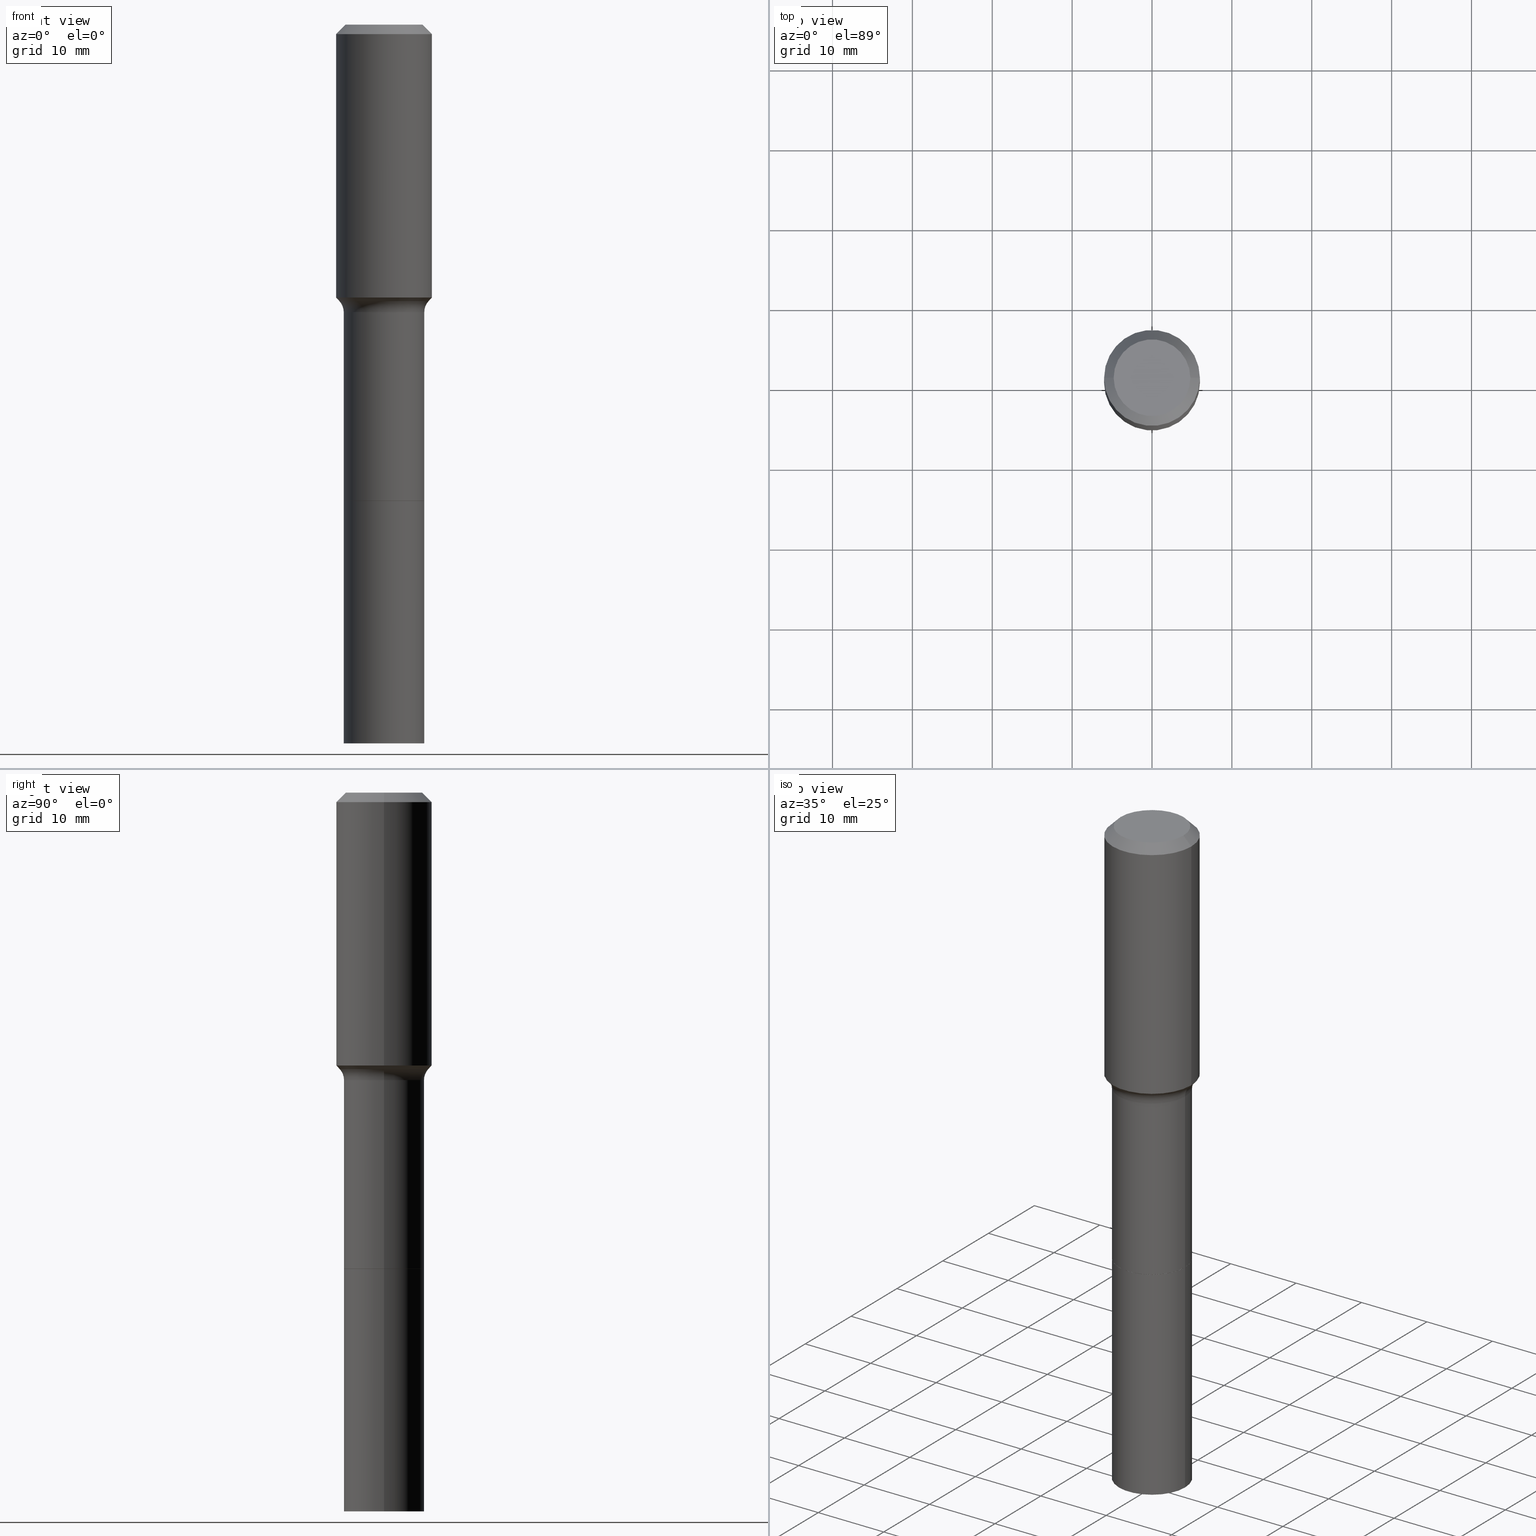
[diagram: canonical four-view strip — front | top / right | iso, engineering-drawing reading convention]
A machine part, canonical four-view strip (front | top / right | iso — engineering-drawing reading convention). The complete STEP part file that produces these views, byte-faithful:
ISO-10303-21;
HEADER;
FILE_DESCRIPTION (( 'STEP AP203' ),
    '1' );
FILE_NAME ('58837.STEP',
    '2025-04-01T15:25:31',
    ( '' ),
    ( '' ),
    'SwSTEP 2.0',
    'SolidWorks 2024',
    '' );
FILE_SCHEMA (( 'CONFIG_CONTROL_DESIGN' ));
ENDSEC;

DATA;
#1 = COORDINATED_UNIVERSAL_TIME_OFFSET ( 5, 0, .BEHIND. ) ;
#2 = AXIS2_PLACEMENT_3D ( 'NONE', #517, #344, #305 ) ;
#3 = CARTESIAN_POINT ( 'NONE',  ( 3.290033129125664758E-29, -4.697295359263862685E-15, -1.345358861582873766 ) ) ;
#4 = FACE_OUTER_BOUND ( 'NONE', #229, .T. ) ;
#5 = PERSON_AND_ORGANIZATION ( #325, #341 ) ;
#6 = CC_DESIGN_DATE_AND_TIME_ASSIGNMENT ( #234, #398, ( #388 ) ) ;
#7 = CLOSED_SHELL ( 'NONE', ( #356, #37, #238, #254, #471, #101, #432, #140, #116, #257, #270, #261, #316, #165 ) ) ;
#8 = DATE_AND_TIME ( #248, #410 ) ;
#9 = AXIS2_PLACEMENT_3D ( 'NONE', #330, #334, #500 ) ;
#10 = CARTESIAN_POINT ( 'NONE',  ( 0.000000000000000000, 0.000000000000000000, 0.000000000000000000 ) ) ;
#11 = EDGE_CURVE ( 'NONE', #28, #467, #494, .T. ) ;
#12 = PERSON_AND_ORGANIZATION ( #325, #341 ) ;
#13 = DIRECTION ( 'NONE',  ( 1.000000000000000000, -6.982962677686269077E-15, 0.000000000000000000 ) ) ;
#14 = DIRECTION ( 'NONE',  ( -2.445468806185136597E-29, 3.491481338843145583E-15, 1.000000000000000000 ) ) ;
#15 = LINE ( 'NONE', #371, #478 ) ;
#16 = LINE ( 'NONE', #178, #122 ) ;
#17 = DIRECTION ( 'NONE',  ( -2.445468806185136597E-29, 3.491481338843145583E-15, 1.000000000000000000 ) ) ;
#18 = AXIS2_PLACEMENT_3D ( 'NONE', #407, #51, #127 ) ;
#19 = DIRECTION ( 'NONE',  ( -2.445468806185136597E-29, 3.491481338843145583E-15, 1.000000000000000000 ) ) ;
#20 = EDGE_CURVE ( 'NONE', #28, #31, #74, .T. ) ;
#21 = LINE ( 'NONE', #338, #177 ) ;
#22 = CIRCLE ( 'NONE', #2, 0.1985000000000000098 ) ;
#23 = CYLINDRICAL_SURFACE ( 'NONE', #9, 0.1985000000000000098 ) ;
#24 = ORIENTED_EDGE ( 'NONE', *, *, #273, .F. ) ;
#25 = CARTESIAN_POINT ( 'NONE',  ( -0.1980000000000000093, -6.785188048522673829E-15, -2.346299999999999830 ) ) ;
#26 = VERTEX_POINT ( 'NONE', #38 ) ;
#27 = EDGE_LOOP ( 'NONE', ( #144, #306 ) ) ;
#28 = VERTEX_POINT ( 'NONE', #153 ) ;
#29 = CIRCLE ( 'NONE', #39, 0.07999999999999983513 ) ;
#30 = CARTESIAN_POINT ( 'NONE',  ( -0.2361999999999999933, 1.484438206022545019E-15, -0.04724000000000028870 ) ) ;
#31 = VERTEX_POINT ( 'NONE', #32 ) ;
#32 = CARTESIAN_POINT ( 'NONE',  ( -0.2361999999999999933, -7.528145269900497156E-16, -0.04724000000000028870 ) ) ;
#33 = CIRCLE ( 'NONE', #104, 0.07999999999999983513 ) ;
#34 = PRODUCT_DEFINITION_SHAPE ( 'NONE', 'NONE',  #451 ) ;
#35 = ORIENTED_EDGE ( 'NONE', *, *, #187, .F. ) ;
#36 = VERTEX_POINT ( 'NONE', #470 ) ;
#37 = ADVANCED_FACE ( 'NONE', ( #434 ), #123, .T. ) ;
#38 = CARTESIAN_POINT ( 'NONE',  ( -0.1985000000000000098, -8.871286916141496321E-15, -2.346299999999999830 ) ) ;
#39 = AXIS2_PLACEMENT_3D ( 'NONE', #72, #173, #427 ) ;
#40 = APPROVAL_PERSON_ORGANIZATION ( #285, #441, #236 ) ;
#41 = DIRECTION ( 'NONE',  ( -0.7071067811864509833, 7.493145998870005484E-15, 0.7071067811866440511 ) ) ;
#42 = CARTESIAN_POINT ( 'NONE',  ( 0.1980000000000000093, -9.574689275509554760E-15, -2.346299999999999830 ) ) ;
#43 = CC_DESIGN_PERSON_AND_ORGANIZATION_ASSIGNMENT ( #378, #339, ( #79 ) ) ;
#44 = CARTESIAN_POINT ( 'NONE',  ( 8.665029620955794069E-29, -1.237136582792291707E-14, -3.543299999999999894 ) ) ;
#45 = DATE_AND_TIME ( #131, #436 ) ;
#46 = CONICAL_SURFACE ( 'NONE', #345, 0.1980000000000000093, 0.7853981633973118326 ) ;
#47 = APPROVAL_DATE_TIME ( #8, #264 ) ;
#48 = DIRECTION ( 'NONE',  ( -0.6819983600624988096, 7.399397606724288154E-15, 0.7313537016191701268 ) ) ;
#49 = APPROVAL_DATE_TIME ( #45, #441 ) ;
#50 = EDGE_CURVE ( 'NONE', #429, #106, #438, .T. ) ;
#51 = DIRECTION ( 'NONE',  ( -2.445468806185136597E-29, 3.491481338843145583E-15, 1.000000000000000000 ) ) ;
#52 = AXIS2_PLACEMENT_3D ( 'NONE', #505, #139, #423 ) ;
#53 = CARTESIAN_POINT ( 'NONE',  ( 5.737803459952185617E-29, -8.192062665327673446E-15, -2.346299999999999830 ) ) ;
#54 = CALENDAR_DATE ( 2025, 1, 4 ) ;
#55 =( LENGTH_UNIT ( ) NAMED_UNIT ( * ) SI_UNIT ( $, .METRE. ) );
#56 = CC_DESIGN_PERSON_AND_ORGANIZATION_ASSIGNMENT ( #363, #281, ( #388 ) ) ;
#57 = CARTESIAN_POINT ( 'NONE',  ( 0.2784999999999999143, -6.893231607278014049E-15, -1.417299999999999560 ) ) ;
#58 = CARTESIAN_POINT ( 'NONE',  ( 1.155239464041865682E-30, -1.649375784469512105E-16, -0.04724000000000028870 ) ) ;
#59 = DIRECTION ( 'NONE',  ( 1.000000000000000000, -6.982962677686265133E-15, 0.000000000000000000 ) ) ;
#60 = VECTOR ( 'NONE', #294, 39.37007874015748143 ) ;
#61 = DESIGN_CONTEXT ( 'detailed design', #357, 'design' ) ;
#62 = PLANE ( 'NONE',  #366 ) ;
#63 = CLOSED_SHELL ( 'NONE', ( #406, #324, #145, #414 ) ) ;
#64 = DIRECTION ( 'NONE',  ( -2.445468806185136877E-29, 3.491481338843145188E-15, 1.000000000000000000 ) ) ;
#65 = FACE_OUTER_BOUND ( 'NONE', #425, .T. ) ;
#66 = EDGE_CURVE ( 'NONE', #80, #474, #22, .T. ) ;
#67 = CIRCLE ( 'NONE', #96, 0.1985000000000000098 ) ;
#68 = DIRECTION ( 'NONE',  ( -2.445468806185136597E-29, 3.491481338843145583E-15, 1.000000000000000000 ) ) ;
#69 = APPLICATION_PROTOCOL_DEFINITION ( 'international standard', 'config_control_design', 1994, #472 ) ;
#70 = VERTEX_POINT ( 'NONE', #395 ) ;
#71 = VECTOR ( 'NONE', #228, 39.37007874015748143 ) ;
#72 = CARTESIAN_POINT ( 'NONE',  ( -0.2784999999999999143, -2.969614982450510850E-15, -1.417299999999999560 ) ) ;
#73 = ORIENTED_EDGE ( 'NONE', *, *, #176, .T. ) ;
#74 = LINE ( 'NONE', #30, #71 ) ;
#75 = ORIENTED_EDGE ( 'NONE', *, *, #124, .T. ) ;
#76 = ORIENTED_EDGE ( 'NONE', *, *, #223, .F. ) ;
#77 = ORIENTED_EDGE ( 'NONE', *, *, #86, .T. ) ;
#78 = AXIS2_PLACEMENT_3D ( 'NONE', #355, #386, #315 ) ;
#79 = PRODUCT ( '58837', '58837', '', ( #217 ) ) ;
#80 = VERTEX_POINT ( 'NONE', #157 ) ;
#81 = ORIENTED_EDGE ( 'NONE', *, *, #176, .F. ) ;
#82 = DIRECTION ( 'NONE',  ( -2.445468806185136597E-29, 3.491481338843145583E-15, 1.000000000000000000 ) ) ;
#83 = EDGE_LOOP ( 'NONE', ( #263, #477, #152, #314 ) ) ;
#84 = CONICAL_SURFACE ( 'NONE', #181, 0.2361999999999999933, 0.7853981633974452814 ) ;
#85 = VERTEX_POINT ( 'NONE', #225 ) ;
#86 = EDGE_CURVE ( 'NONE', #111, #31, #354, .T. ) ;
#87 = DIRECTION ( 'NONE',  ( -2.445468806185136597E-29, 3.491481338843145583E-15, 1.000000000000000000 ) ) ;
#88 = AXIS2_PLACEMENT_3D ( 'NONE', #44, #91, #130 ) ;
#89 = DIRECTION ( 'NONE',  ( -2.445468806185136597E-29, 3.491481338843145583E-15, 1.000000000000000000 ) ) ;
#90 = FACE_OUTER_BOUND ( 'NONE', #303, .T. ) ;
#91 = DIRECTION ( 'NONE',  ( 2.438088387897960049E-29, -3.491481338843145188E-15, -1.000000000000000000 ) ) ;
#92 = TOROIDAL_SURFACE ( 'NONE', #360, 0.2784999999999999143, 0.07999999999999986289 ) ;
#93 = FACE_OUTER_BOUND ( 'NONE', #310, .T. ) ;
#94 = DIRECTION ( 'NONE',  ( 1.000000000000000000, -6.982962677686265922E-15, 4.883557194083112901E-29 ) ) ;
#95 = PLANE ( 'NONE',  #272 ) ;
#96 = AXIS2_PLACEMENT_3D ( 'NONE', #413, #135, #102 ) ;
#97 = CARTESIAN_POINT ( 'NONE',  ( 8.665029620955794069E-29, -1.237136582792291707E-14, -3.543299999999999894 ) ) ;
#98 = DIRECTION ( 'NONE',  ( 1.000000000000000000, -6.982962677686265922E-15, 4.876176775795935793E-29 ) ) ;
#99 = AXIS2_PLACEMENT_3D ( 'NONE', #417, #103, #290 ) ;
#100 = UNCERTAINTY_MEASURE_WITH_UNIT (LENGTH_MEASURE( 1.000000000000000082E-05 ), #214, 'distance_accuracy_value', 'NONE');
#101 = ADVANCED_FACE ( 'NONE', ( #198 ), #298, .T. ) ;
#102 = DIRECTION ( 'NONE',  ( 1.000000000000000000, -6.982962677686271444E-15, 0.000000000000000000 ) ) ;
#103 = DIRECTION ( 'NONE',  ( -2.445468806185136597E-29, 3.491481338843145583E-15, 1.000000000000000000 ) ) ;
#104 = AXIS2_PLACEMENT_3D ( 'NONE', #57, #370, #485 ) ;
#105 = CARTESIAN_POINT ( 'NONE',  ( 5.737803459952185617E-29, -8.192062665327673446E-15, -2.346299999999999830 ) ) ;
#106 = VERTEX_POINT ( 'NONE', #253 ) ;
#107 = EDGE_CURVE ( 'NONE', #514, #111, #250, .T. ) ;
#108 = DIRECTION ( 'NONE',  ( 1.000000000000000000, -6.982962677686263555E-15, 0.000000000000000000 ) ) ;
#109 = ORIENTED_EDGE ( 'NONE', *, *, #124, .F. ) ;
#110 = CIRCLE ( 'NONE', #396, 0.1980000000000000093 ) ;
#111 = VERTEX_POINT ( 'NONE', #466 ) ;
#112 = ORIENTED_EDGE ( 'NONE', *, *, #340, .T. ) ;
#113 = CARTESIAN_POINT ( 'NONE',  ( 0.1980000000000000093, -9.574689275509554760E-15, -2.346299999999999830 ) ) ;
#114 = CIRCLE ( 'NONE', #443, 0.2362000000000001598 ) ;
#115 = DIRECTION ( 'NONE',  ( -2.445468806185136597E-29, 3.491481338843145583E-15, 1.000000000000000000 ) ) ;
#116 = ADVANCED_FACE ( 'NONE', ( #65 ), #195, .T. ) ;
#117 = ORIENTED_EDGE ( 'NONE', *, *, #353, .T. ) ;
#118 = VECTOR ( 'NONE', #401, 39.37007874015748143 ) ;
#119 = ORIENTED_EDGE ( 'NONE', *, *, #216, .T. ) ;
#120 = ORIENTED_EDGE ( 'NONE', *, *, #422, .F. ) ;
#121 = VERTEX_POINT ( 'NONE', #182 ) ;
#122 = VECTOR ( 'NONE', #64, 39.37007874015748143 ) ;
#123 = CONICAL_SURFACE ( 'NONE', #504, 0.2361999999999999933, 0.7853981633974452814 ) ;
#124 = EDGE_CURVE ( 'NONE', #474, #26, #462, .T. ) ;
#125 = CARTESIAN_POINT ( 'NONE',  ( 3.332538481774012867E-29, -4.757981737760002382E-15, -1.362740131195000037 ) ) ;
#126 = AXIS2_PLACEMENT_3D ( 'NONE', #453, #488, #326 ) ;
#127 = DIRECTION ( 'NONE',  ( 1.000000000000000000, -6.982962677686271444E-15, 0.000000000000000000 ) ) ;
#128 = DIRECTION ( 'NONE',  ( -2.445468806185136597E-29, 3.491481338843145583E-15, 1.000000000000000000 ) ) ;
#129 = PERSON_AND_ORGANIZATION_ROLE ( 'design_supplier' ) ;
#130 = DIRECTION ( 'NONE',  ( -1.000000000000000000, 6.982962677686265922E-15, -4.876176775795935793E-29 ) ) ;
#131 = CALENDAR_DATE ( 2025, 1, 4 ) ;
#132 = PERSON_AND_ORGANIZATION ( #325, #341 ) ;
#133 = FACE_OUTER_BOUND ( 'NONE', #475, .T. ) ;
#134 = DIRECTION ( 'NONE',  ( 0.7071067811865453523, -7.319954787623248157E-15, -0.7071067811865496822 ) ) ;
#135 = DIRECTION ( 'NONE',  ( -2.445468806185136597E-29, 3.491481338843145583E-15, 1.000000000000000000 ) ) ;
#136 = FACE_OUTER_BOUND ( 'NONE', #222, .T. ) ;
#137 = EDGE_CURVE ( 'NONE', #394, #431, #29, .T. ) ;
#138 = LINE ( 'NONE', #292, #457 ) ;
#139 = DIRECTION ( 'NONE',  ( 0.000000000000000000, 0.000000000000000000, 1.000000000000000000 ) ) ;
#140 = ADVANCED_FACE ( 'NONE', ( #141 ), #92, .F. ) ;
#141 = FACE_OUTER_BOUND ( 'NONE', #83, .T. ) ;
#142 = CIRCLE ( 'NONE', #419, 0.2199917038704662653 ) ;
#143 = CARTESIAN_POINT ( 'NONE',  ( 3.465962939006193198E-29, -4.948476501542388865E-15, -1.417299999999999560 ) ) ;
#144 = ORIENTED_EDGE ( 'NONE', *, *, #66, .F. ) ;
#145 = ADVANCED_FACE ( 'NONE', ( #459 ), #220, .T. ) ;
#146 = DIRECTION ( 'NONE',  ( 1.000000000000000000, -6.982962677686266711E-15, 4.876185090822587894E-29 ) ) ;
#147 = EDGE_LOOP ( 'NONE', ( #350, #75, #312, #346 ) ) ;
#148 = ORIENTED_EDGE ( 'NONE', *, *, #187, .T. ) ;
#149 = ORIENTED_EDGE ( 'NONE', *, *, #11, .T. ) ;
#150 = CIRCLE ( 'NONE', #18, 0.1985000000000000098 ) ;
#151 = EDGE_CURVE ( 'NONE', #464, #431, #435, .T. ) ;
#152 = ORIENTED_EDGE ( 'NONE', *, *, #422, .T. ) ;
#153 = CARTESIAN_POINT ( 'NONE',  ( -0.1889600000000000168, 1.401969416799070942E-15, 3.855188123706346622E-18 ) ) ;
#154 = ORIENTED_EDGE ( 'NONE', *, *, #491, .T. ) ;
#155 = AXIS2_PLACEMENT_3D ( 'NONE', #167, #329, #331 ) ;
#156 = PRODUCT_DEFINITION_FORMATION_WITH_SPECIFIED_SOURCE ( 'ANY', '', #79, .NOT_KNOWN. ) ;
#157 = CARTESIAN_POINT ( 'NONE',  ( 0.1985000000000000098, -1.375748391944363982E-14, -3.543299999999999894 ) ) ;
#158 = CC_DESIGN_APPROVAL ( #264, ( #451 ) ) ;
#159 = FACE_OUTER_BOUND ( 'NONE', #147, .T. ) ;
#160 = CONICAL_SURFACE ( 'NONE', #226, 0.2199917038704662653, 0.7504915783575621946 ) ;
#161 = PERSON_AND_ORGANIZATION ( #325, #341 ) ;
#162 = LOCAL_TIME ( 11, 25, 31.00000000000000000, #283 ) ;
#163 = CARTESIAN_POINT ( 'NONE',  ( 3.477250939119132197E-29, -1.142930253781982442E-14, -2.346299999999999830 ) ) ;
#164 = COORDINATED_UNIVERSAL_TIME_OFFSET ( 5, 0, .BEHIND. ) ;
#165 = ADVANCED_FACE ( 'NONE', ( #424 ), #46, .T. ) ;
#166 = AXIS2_PLACEMENT_3D ( 'NONE', #210, #14, #94 ) ;
#167 = CARTESIAN_POINT ( 'NONE',  ( -4.713871149261273121E-47, 6.730158695841826722E-33, 1.927594061857931128E-18 ) ) ;
#168 = EDGE_CURVE ( 'NONE', #85, #106, #387, .T. ) ;
#169 = DIRECTION ( 'NONE',  ( -2.445468806185136597E-29, 3.491481338843145583E-15, 1.000000000000000000 ) ) ;
#170 = PLANE ( 'NONE',  #155 ) ;
#171 = APPLICATION_PROTOCOL_DEFINITION ( 'international standard', 'config_control_design', 1994, #357 ) ;
#172 = CARTESIAN_POINT ( 'NONE',  ( 5.737803459952185617E-29, -8.192062665327673446E-15, -2.346299999999999830 ) ) ;
#173 = DIRECTION ( 'NONE',  ( 7.105427357601001859E-15, 1.000000000000000000, -3.491481338843145583E-15 ) ) ;
#174 = CIRCLE ( 'NONE', #237, 0.1984999999999999543 ) ;
#175 = CARTESIAN_POINT ( 'NONE',  ( 5.736580725549092815E-29, -8.190316924658251154E-15, -2.345799999999999663 ) ) ;
#176 = EDGE_CURVE ( 'NONE', #70, #514, #21, .T. ) ;
#177 = VECTOR ( 'NONE', #296, 39.37007874015748143 ) ;
#178 = CARTESIAN_POINT ( 'NONE',  ( -0.1985000000000000098, 1.410427330483798938E-15, -9.764086154155988574E-30 ) ) ;
#179 = CC_DESIGN_PERSON_AND_ORGANIZATION_ASSIGNMENT ( #12, #495, ( #451 ) ) ;
#180 = ORIENTED_EDGE ( 'NONE', *, *, #333, .F. ) ;
#181 = AXIS2_PLACEMENT_3D ( 'NONE', #58, #444, #499 ) ;
#182 = CARTESIAN_POINT ( 'NONE',  ( -0.1980000000000000093, -6.782538821348561839E-15, -2.346299999999999830 ) ) ;
#183 = ORIENTED_EDGE ( 'NONE', *, *, #353, .F. ) ;
#184 = DIRECTION ( 'NONE',  ( -1.000000000000000000, 6.982962677686266711E-15, 0.000000000000000000 ) ) ;
#185 = CIRCLE ( 'NONE', #218, 0.2362000000000001598 ) ;
#186 = ORIENTED_EDGE ( 'NONE', *, *, #333, .T. ) ;
#187 = EDGE_CURVE ( 'NONE', #121, #85, #255, .T. ) ;
#188 = ORIENTED_EDGE ( 'NONE', *, *, #107, .F. ) ;
#189 = ORIENTED_EDGE ( 'NONE', *, *, #364, .T. ) ;
#190 = ORIENTED_EDGE ( 'NONE', *, *, #367, .T. ) ;
#191 = AXIS2_PLACEMENT_3D ( 'NONE', #97, #209, #274 ) ;
#192 = EDGE_LOOP ( 'NONE', ( #109, #189, #510, #221 ) ) ;
#193 = ORIENTED_EDGE ( 'NONE', *, *, #243, .F. ) ;
#194 = EDGE_CURVE ( 'NONE', #31, #111, #426, .T. ) ;
#195 = CONICAL_SURFACE ( 'NONE', #99, 0.2199917038704662653, 0.7504915783575621946 ) ;
#196 = EDGE_LOOP ( 'NONE', ( #391, #268, #219, #269 ) ) ;
#197 = DIRECTION ( 'NONE',  ( 1.000000000000000000, -6.982962677686271444E-15, 0.000000000000000000 ) ) ;
#198 = FACE_OUTER_BOUND ( 'NONE', #196, .T. ) ;
#199 = CARTESIAN_POINT ( 'NONE',  ( 5.737803459952185617E-29, -8.192062665327671869E-15, -2.346299999999999830 ) ) ;
#200 = DIRECTION ( 'NONE',  ( 1.000000000000000000, -6.982962677686264344E-15, 0.000000000000000000 ) ) ;
#201 = PERSON_AND_ORGANIZATION_ROLE ( 'creator' ) ;
#202 = CC_DESIGN_APPROVAL ( #465, ( #388 ) ) ;
#203 = CARTESIAN_POINT ( 'NONE',  ( 0.2361999999999999933, -1.785387205520586782E-15, -0.04724000000000028870 ) ) ;
#204 = SECURITY_CLASSIFICATION_LEVEL ( 'unclassified' ) ;
#205 = EDGE_CURVE ( 'NONE', #106, #464, #235, .T. ) ;
#206 = CIRCLE ( 'NONE', #191, 0.1985000000000000098 ) ;
#207 = DIRECTION ( 'NONE',  ( -2.445468806185136597E-29, 3.491481338843145583E-15, 1.000000000000000000 ) ) ;
#208 = DIRECTION ( 'NONE',  ( -2.445468806185136597E-29, 3.491481338843145583E-15, 1.000000000000000000 ) ) ;
#209 = DIRECTION ( 'NONE',  ( -2.445468806185136597E-29, 3.491481338843145583E-15, 1.000000000000000000 ) ) ;
#210 = CARTESIAN_POINT ( 'NONE',  ( 3.465962939006193198E-29, -4.948476501542388865E-15, -1.417299999999999560 ) ) ;
#211 = DIRECTION ( 'NONE',  ( 1.000000000000000000, -6.982962677686268288E-15, 0.000000000000000000 ) ) ;
#212 = CARTESIAN_POINT ( 'NONE',  ( 3.465962939006193759E-29, -4.948476501542390442E-15, -1.417300000000000004 ) ) ;
#213 = CIRCLE ( 'NONE', #513, 0.1985000000000000375 ) ;
#214 =( CONVERSION_BASED_UNIT ( 'INCH', #252 ) LENGTH_UNIT ( ) NAMED_UNIT ( #377 ) );
#215 = DIRECTION ( 'NONE',  ( 1.000000000000000000, -6.982962677686265922E-15, 4.883557194083112901E-29 ) ) ;
#216 = EDGE_CURVE ( 'NONE', #262, #514, #185, .T. ) ;
#217 = MECHANICAL_CONTEXT ( 'NONE', #472, 'mechanical' ) ;
#218 = AXIS2_PLACEMENT_3D ( 'NONE', #496, #239, #211 ) ;
#219 = ORIENTED_EDGE ( 'NONE', *, *, #151, .F. ) ;
#220 = CYLINDRICAL_SURFACE ( 'NONE', #449, 0.1985000000000000098 ) ;
#221 = ORIENTED_EDGE ( 'NONE', *, *, #392, .F. ) ;
#222 = EDGE_LOOP ( 'NONE', ( #149, #479 ) ) ;
#223 = EDGE_CURVE ( 'NONE', #467, #111, #251, .T. ) ;
#224 = EDGE_LOOP ( 'NONE', ( #227, #154, #265, #188 ) ) ;
#225 = CARTESIAN_POINT ( 'NONE',  ( -0.1985000000000000375, -5.158969382616521071E-15, -2.345799999999999663 ) ) ;
#226 = AXIS2_PLACEMENT_3D ( 'NONE', #125, #492, #200 ) ;
#227 = ORIENTED_EDGE ( 'NONE', *, *, #379, .T. ) ;
#228 = DIRECTION ( 'NONE',  ( -0.7071067811865453523, 2.468850131082234184E-15, -0.7071067811865496822 ) ) ;
#229 = EDGE_LOOP ( 'NONE', ( #190, #117, #266, #81 ) ) ;
#230 = EDGE_CURVE ( 'NONE', #80, #36, #15, .T. ) ;
#231 = ORIENTED_EDGE ( 'NONE', *, *, #107, .T. ) ;
#232 = DIRECTION ( 'NONE',  ( 2.445468806185136597E-29, -3.491481338843145583E-15, -1.000000000000000000 ) ) ;
#233 = CC_DESIGN_APPROVAL ( #441, ( #156 ) ) ;
#234 = DATE_AND_TIME ( #54, #293 ) ;
#235 = LINE ( 'NONE', #393, #118 ) ;
#236 = APPROVAL_ROLE ( '' ) ;
#237 = AXIS2_PLACEMENT_3D ( 'NONE', #452, #128, #278 ) ;
#238 = ADVANCED_FACE ( 'NONE', ( #408 ), #372, .T. ) ;
#239 = DIRECTION ( 'NONE',  ( -2.445468806185136597E-29, 3.491481338843145583E-15, 1.000000000000000000 ) ) ;
#240 = AXIS2_PLACEMENT_3D ( 'NONE', #175, #68, #258 ) ;
#241 = PLANE ( 'NONE',  #88 ) ;
#242 = FACE_OUTER_BOUND ( 'NONE', #27, .T. ) ;
#243 = EDGE_CURVE ( 'NONE', #429, #121, #110, .T. ) ;
#244 =( NAMED_UNIT ( * ) PLANE_ANGLE_UNIT ( ) SI_UNIT ( $, .RADIAN. ) );
#245 = VECTOR ( 'NONE', #48, 39.37007874015748143 ) ;
#246 = CARTESIAN_POINT ( 'NONE',  ( 5.737803459952185617E-29, -8.192062665327671869E-15, -2.346299999999999830 ) ) ;
#247 = DIRECTION ( 'NONE',  ( -2.445468806185136597E-29, 3.491481338843145583E-15, 1.000000000000000000 ) ) ;
#248 = CALENDAR_DATE ( 2025, 1, 4 ) ;
#249 = CC_DESIGN_PERSON_AND_ORGANIZATION_ASSIGNMENT ( #5, #129, ( #156 ) ) ;
#250 = LINE ( 'NONE', #342, #60 ) ;
#251 = LINE ( 'NONE', #203, #313 ) ;
#252 = LENGTH_MEASURE_WITH_UNIT ( LENGTH_MEASURE( 0.02539999999999999897 ), #55 );
#253 = CARTESIAN_POINT ( 'NONE',  ( 0.1985000000000000375, -9.576435016178973897E-15, -2.345799999999999663 ) ) ;
#254 = ADVANCED_FACE ( 'NONE', ( #4 ), #160, .T. ) ;
#255 = LINE ( 'NONE', #25, #335 ) ;
#256 = ORIENTED_EDGE ( 'NONE', *, *, #392, .T. ) ;
#257 = ADVANCED_FACE ( 'NONE', ( #412 ), #368, .T. ) ;
#258 = DIRECTION ( 'NONE',  ( 1.000000000000000000, -6.982962677686265133E-15, 0.000000000000000000 ) ) ;
#259 = ORIENTED_EDGE ( 'NONE', *, *, #50, .F. ) ;
#260 = ORIENTED_EDGE ( 'NONE', *, *, #194, .T. ) ;
#261 = ADVANCED_FACE ( 'NONE', ( #136 ), #170, .F. ) ;
#262 = VERTEX_POINT ( 'NONE', #455 ) ;
#263 = ORIENTED_EDGE ( 'NONE', *, *, #137, .F. ) ;
#264 = APPROVAL ( #282, 'UNSPECIFIED' ) ;
#265 = ORIENTED_EDGE ( 'NONE', *, *, #86, .F. ) ;
#266 = ORIENTED_EDGE ( 'NONE', *, *, #379, .F. ) ;
#267 = AXIS2_PLACEMENT_3D ( 'NONE', #442, #87, #311 ) ;
#268 = ORIENTED_EDGE ( 'NONE', *, *, #480, .T. ) ;
#269 = ORIENTED_EDGE ( 'NONE', *, *, #205, .F. ) ;
#270 = ADVANCED_FACE ( 'NONE', ( #327 ), #84, .T. ) ;
#271 = ORIENTED_EDGE ( 'NONE', *, *, #137, .T. ) ;
#272 = AXIS2_PLACEMENT_3D ( 'NONE', #246, #402, #411 ) ;
#273 = EDGE_CURVE ( 'NONE', #467, #28, #400, .T. ) ;
#274 = DIRECTION ( 'NONE',  ( 1.000000000000000000, -6.982962677686261189E-15, 0.000000000000000000 ) ) ;
#275 = DIRECTION ( 'NONE',  ( 1.000000000000000000, -6.982962677686266711E-15, 4.876176775795935793E-29 ) ) ;
#276 = APPROVAL_ROLE ( '' ) ;
#277 = TOROIDAL_SURFACE ( 'NONE', #166, 0.2784999999999999143, 0.07999999999999986289 ) ;
#278 = DIRECTION ( 'NONE',  ( 1.000000000000000000, -6.982962677686263555E-15, 0.000000000000000000 ) ) ;
#279 = AXIS2_PLACEMENT_3D ( 'NONE', #10, #17, #275 ) ;
#280 = CARTESIAN_POINT ( 'NONE',  ( 3.332538481774012867E-29, -4.757981737760002382E-15, -1.362740131195000037 ) ) ;
#281 = PERSON_AND_ORGANIZATION_ROLE ( 'classification_officer' ) ;
#282 = APPROVAL_STATUS ( 'not_yet_approved' ) ;
#283 = COORDINATED_UNIVERSAL_TIME_OFFSET ( 5, 0, .BEHIND. ) ;
#284 = DIRECTION ( 'NONE',  ( 1.000000000000000000, -6.982962677686269077E-15, 0.000000000000000000 ) ) ;
#285 = PERSON_AND_ORGANIZATION ( #325, #341 ) ;
#286 = CC_DESIGN_PERSON_AND_ORGANIZATION_ASSIGNMENT ( #497, #201, ( #156 ) ) ;
#287 = CARTESIAN_POINT ( 'NONE',  ( 0.1889600000000000168, -1.540873453589747738E-15, 3.855188123725863225E-18 ) ) ;
#288 = CARTESIAN_POINT ( 'NONE',  ( 0.000000000000000000, 0.000000000000000000, 0.000000000000000000 ) ) ;
#289 = APPROVAL_DATE_TIME ( #420, #465 ) ;
#290 = DIRECTION ( 'NONE',  ( 1.000000000000000000, -6.982962677686264344E-15, 0.000000000000000000 ) ) ;
#291 = VECTOR ( 'NONE', #352, 39.37007874015748143 ) ;
#292 = CARTESIAN_POINT ( 'NONE',  ( -0.2362000000000000766, 1.678301941865357183E-15, -1.161852468318209177E-29 ) ) ;
#293 = LOCAL_TIME ( 11, 25, 31.00000000000000000, #1 ) ;
#294 = DIRECTION ( 'NONE',  ( -2.445468806185136877E-29, 3.491481338843145188E-15, 1.000000000000000000 ) ) ;
#295 = DIRECTION ( 'NONE',  ( -2.445468806185136597E-29, 3.491481338843145583E-15, 1.000000000000000000 ) ) ;
#296 = DIRECTION ( 'NONE',  ( 0.6819983600624988096, -2.208861293262478564E-15, 0.7313537016191701268 ) ) ;
#297 = ORIENTED_EDGE ( 'NONE', *, *, #243, .T. ) ;
#298 = CYLINDRICAL_SURFACE ( 'NONE', #317, 0.1985000000000000098 ) ;
#299 = DIRECTION ( 'NONE',  ( 1.000000000000000000, -6.982962677686265922E-15, 4.876176775795935793E-29 ) ) ;
#300 = ORIENTED_EDGE ( 'NONE', *, *, #194, .F. ) ;
#301 = EDGE_LOOP ( 'NONE', ( #24, #509, #77, #343 ) ) ;
#302 = CARTESIAN_POINT ( 'NONE',  ( -0.1985000000000000098, -6.781635334843872141E-15, -2.346299999999999830 ) ) ;
#303 = EDGE_LOOP ( 'NONE', ( #516, #430, #512, #351 ) ) ;
#304 = CC_DESIGN_DATE_AND_TIME_ASSIGNMENT ( #486, #446, ( #451 ) ) ;
#305 = DIRECTION ( 'NONE',  ( 1.000000000000000000, -6.982962677686261189E-15, 0.000000000000000000 ) ) ;
#306 = ORIENTED_EDGE ( 'NONE', *, *, #364, .F. ) ;
#307 = AXIS2_PLACEMENT_3D ( 'NONE', #199, #318, #197 ) ;
#308 = MANIFOLD_SOLID_BREP ( 'Body-Move/Copy2[1]', #63 ) ;
#309 = ORIENTED_EDGE ( 'NONE', *, *, #50, .T. ) ;
#310 = EDGE_LOOP ( 'NONE', ( #297, #148, #433, #259 ) ) ;
#311 = DIRECTION ( 'NONE',  ( 1.000000000000000000, -6.982962677686266711E-15, 0.000000000000000000 ) ) ;
#312 = ORIENTED_EDGE ( 'NONE', *, *, #506, .F. ) ;
#313 = VECTOR ( 'NONE', #134, 39.37007874015748143 ) ;
#314 = ORIENTED_EDGE ( 'NONE', *, *, #151, .T. ) ;
#315 = DIRECTION ( 'NONE',  ( 1.000000000000000000, -6.982962677686266711E-15, 0.000000000000000000 ) ) ;
#316 = ADVANCED_FACE ( 'NONE', ( #458 ), #62, .F. ) ;
#317 = AXIS2_PLACEMENT_3D ( 'NONE', #511, #82, #299 ) ;
#318 = DIRECTION ( 'NONE',  ( -2.445468806185136597E-29, 3.491481338843145583E-15, 1.000000000000000000 ) ) ;
#319 = DIRECTION ( 'NONE',  ( -2.445468806185136877E-29, 3.491481338843145188E-15, 1.000000000000000000 ) ) ;
#320 = APPROVAL_STATUS ( 'not_yet_approved' ) ;
#321 = DIRECTION ( 'NONE',  ( -2.445468806185136597E-29, 3.491481338843145583E-15, 1.000000000000000000 ) ) ;
#322 = CALENDAR_DATE ( 2025, 1, 4 ) ;
#323 = AXIS2_PLACEMENT_3D ( 'NONE', #358, #169, #399 ) ;
#324 = ADVANCED_FACE ( 'NONE', ( #242 ), #241, .T. ) ;
#325 = PERSON ( 'UNSPECIFIED', 'UNSPECIFIED', 'UNSPECIFIED', ('UNSPECIFIED'), ('UNSPECIFIED'), ('UNSPECIFIED') ) ;
#326 = DIRECTION ( 'NONE',  ( 1.000000000000000000, -6.982962677686264344E-15, 0.000000000000000000 ) ) ;
#327 = FACE_OUTER_BOUND ( 'NONE', #347, .T. ) ;
#328 = CYLINDRICAL_SURFACE ( 'NONE', #307, 0.1985000000000000098 ) ;
#329 = DIRECTION ( 'NONE',  ( 2.438088387897960049E-29, -3.491481338843145188E-15, -1.000000000000000000 ) ) ;
#330 = CARTESIAN_POINT ( 'NONE',  ( 0.000000000000000000, 0.000000000000000000, 0.000000000000000000 ) ) ;
#331 = DIRECTION ( 'NONE',  ( -1.000000000000000000, 6.982962677686265922E-15, -4.876176775795935793E-29 ) ) ;
#332 = DIRECTION ( 'NONE',  ( 1.000000000000000000, -6.982962677686271444E-15, 0.000000000000000000 ) ) ;
#333 = EDGE_CURVE ( 'NONE', #394, #70, #142, .T. ) ;
#334 = DIRECTION ( 'NONE',  ( -2.445468806185136597E-29, 3.491481338843145583E-15, 1.000000000000000000 ) ) ;
#335 = VECTOR ( 'NONE', #41, 39.37007874015748143 ) ;
#336 =( NAMED_UNIT ( * ) SI_UNIT ( $, .STERADIAN. ) SOLID_ANGLE_UNIT ( ) );
#337 = PRODUCT_RELATED_PRODUCT_CATEGORY ( 'detail', '', ( #79 ) ) ;
#338 = CARTESIAN_POINT ( 'NONE',  ( 0.2199917038704662653, -6.294175595288077070E-15, -1.362740131195000037 ) ) ;
#339 = PERSON_AND_ORGANIZATION_ROLE ( 'design_owner' ) ;
#340 = EDGE_CURVE ( 'NONE', #431, #464, #174, .T. ) ;
#341 = ORGANIZATION ( 'UNSPECIFIED', 'UNSPECIFIED', '' ) ;
#342 = CARTESIAN_POINT ( 'NONE',  ( 0.2362000000000000766, -1.649375784469496722E-15, 1.151752954443000368E-29 ) ) ;
#343 = ORIENTED_EDGE ( 'NONE', *, *, #20, .F. ) ;
#344 = DIRECTION ( 'NONE',  ( -2.445468806185136597E-29, 3.491481338843145583E-15, 1.000000000000000000 ) ) ;
#345 = AXIS2_PLACEMENT_3D ( 'NONE', #105, #19, #421 ) ;
#346 = ORIENTED_EDGE ( 'NONE', *, *, #230, .F. ) ;
#347 = EDGE_LOOP ( 'NONE', ( #76, #389, #380, #260 ) ) ;
#348 = EDGE_LOOP ( 'NONE', ( #180, #271, #112, #120 ) ) ;
#349 = CONICAL_SURFACE ( 'NONE', #374, 0.1980000000000000093, 0.7853981633973118326 ) ;
#350 = ORIENTED_EDGE ( 'NONE', *, *, #66, .T. ) ;
#351 = ORIENTED_EDGE ( 'NONE', *, *, #340, .F. ) ;
#352 = DIRECTION ( 'NONE',  ( 0.7071067811864509833, -2.468850131081245741E-15, 0.7071067811866440511 ) ) ;
#353 = EDGE_CURVE ( 'NONE', #394, #262, #447, .T. ) ;
#354 = CIRCLE ( 'NONE', #78, 0.2361999999999999933 ) ;
#355 = CARTESIAN_POINT ( 'NONE',  ( 1.155239464041865682E-30, -1.649375784469512105E-16, -0.04724000000000028870 ) ) ;
#356 = ADVANCED_FACE ( 'NONE', ( #93 ), #349, .T. ) ;
#357 = APPLICATION_CONTEXT ( 'configuration controlled 3d designs of mechanical parts and assemblies' ) ;
#358 = CARTESIAN_POINT ( 'NONE',  ( 5.737803459952185617E-29, -8.192062665327673446E-15, -2.346299999999999830 ) ) ;
#359 = COORDINATED_UNIVERSAL_TIME_OFFSET ( 5, 0, .BEHIND. ) ;
#360 = AXIS2_PLACEMENT_3D ( 'NONE', #143, #503, #215 ) ;
#361 = CARTESIAN_POINT ( 'NONE',  ( -0.1984999999999999543, -5.158969382616521071E-15, -1.417300000000000004 ) ) ;
#362 = DIRECTION ( 'NONE',  ( -2.438088387897960049E-29, 3.491481338843145188E-15, 1.000000000000000000 ) ) ;
#363 = PERSON_AND_ORGANIZATION ( #325, #341 ) ;
#364 = EDGE_CURVE ( 'NONE', #474, #80, #206, .T. ) ;
#365 = DIRECTION ( 'NONE',  ( 1.000000000000000000, -6.982962677686266711E-15, 4.876176775795935793E-29 ) ) ;
#366 = AXIS2_PLACEMENT_3D ( 'NONE', #163, #362, #98 ) ;
#367 = EDGE_CURVE ( 'NONE', #70, #394, #507, .T. ) ;
#368 = CYLINDRICAL_SURFACE ( 'NONE', #279, 0.2362000000000000766 ) ;
#369 = CARTESIAN_POINT ( 'NONE',  ( 0.2362000000000001598, -6.346671143733359211E-15, -1.345358861582873766 ) ) ;
#370 = DIRECTION ( 'NONE',  ( -6.982962677686266711E-15, -1.000000000000000000, 3.491481338843145583E-15 ) ) ;
#371 = CARTESIAN_POINT ( 'NONE',  ( 0.1985000000000000098, -9.578180756848396189E-15, -2.346299999999999830 ) ) ;
#372 = CYLINDRICAL_SURFACE ( 'NONE', #518, 0.2362000000000000766 ) ;
#373 = DIRECTION ( 'NONE',  ( -2.445468806185136877E-29, 3.491481338843145188E-15, 1.000000000000000000 ) ) ;
#374 = AXIS2_PLACEMENT_3D ( 'NONE', #53, #208, #13 ) ;
#375 = DIRECTION ( 'NONE',  ( -2.445468806185136597E-29, 3.491481338843145583E-15, 1.000000000000000000 ) ) ;
#376 = ADVANCED_BREP_SHAPE_REPRESENTATION ( '58837', ( #308, #493, #52 ), #482 ) ;
#377 = DIMENSIONAL_EXPONENTS ( 1.000000000000000000, 0.000000000000000000, 0.000000000000000000, 0.000000000000000000, 0.000000000000000000, 0.000000000000000000, 0.000000000000000000 ) ;
#378 = PERSON_AND_ORGANIZATION ( #325, #341 ) ;
#379 = EDGE_CURVE ( 'NONE', #514, #262, #114, .T. ) ;
#380 = ORIENTED_EDGE ( 'NONE', *, *, #20, .T. ) ;
#381 = EDGE_CURVE ( 'NONE', #121, #429, #473, .T. ) ;
#382 = CARTESIAN_POINT ( 'NONE',  ( 5.737803459952185617E-29, -8.192062665327671869E-15, -2.346299999999999830 ) ) ;
#383 = EDGE_LOOP ( 'NONE', ( #440, #119, #231, #300 ) ) ;
#384 = APPROVAL_PERSON_ORGANIZATION ( #132, #264, #498 ) ;
#385 = CARTESIAN_POINT ( 'NONE',  ( -9.427742298522546243E-47, 1.346031739168365344E-32, 3.855188123715862256E-18 ) ) ;
#386 = DIRECTION ( 'NONE',  ( -2.445468806185136597E-29, 3.491481338843145583E-15, 1.000000000000000000 ) ) ;
#387 = CIRCLE ( 'NONE', #240, 0.1985000000000000375 ) ;
#388 = SECURITY_CLASSIFICATION ( '', '', #204 ) ;
#389 = ORIENTED_EDGE ( 'NONE', *, *, #11, .F. ) ;
#390 = CARTESIAN_POINT ( 'NONE',  ( 1.155239464041865682E-30, -1.649375784469512105E-16, -0.04724000000000028870 ) ) ;
#391 = ORIENTED_EDGE ( 'NONE', *, *, #437, .T. ) ;
#392 = EDGE_CURVE ( 'NONE', #26, #36, #150, .T. ) ;
#393 = CARTESIAN_POINT ( 'NONE',  ( 0.1985000000000000098, -1.386118091520723926E-15, 9.679210899954933278E-30 ) ) ;
#394 = VERTEX_POINT ( 'NONE', #445 ) ;
#395 = CARTESIAN_POINT ( 'NONE',  ( 0.2199917038704662098, -6.294175595288077070E-15, -1.362740131195000037 ) ) ;
#396 = AXIS2_PLACEMENT_3D ( 'NONE', #172, #247, #284 ) ;
#397 = APPROVAL_PERSON_ORGANIZATION ( #161, #465, #276 ) ;
#398 = DATE_TIME_ROLE ( 'classification_date' ) ;
#399 = DIRECTION ( 'NONE',  ( 1.000000000000000000, -6.982962677686269077E-15, 0.000000000000000000 ) ) ;
#400 = CIRCLE ( 'NONE', #489, 0.1889600000000000168 ) ;
#401 = DIRECTION ( 'NONE',  ( -2.445468806185136877E-29, 3.491481338843145188E-15, 1.000000000000000000 ) ) ;
#402 = DIRECTION ( 'NONE',  ( 2.438088387897960049E-29, -3.491481338843145188E-15, -1.000000000000000000 ) ) ;
#403 = DIRECTION ( 'NONE',  ( 1.000000000000000000, -6.982962677686266711E-15, 4.876185090822587894E-29 ) ) ;
#404 = CC_DESIGN_SECURITY_CLASSIFICATION ( #388, ( #156 ) ) ;
#405 = CARTESIAN_POINT ( 'NONE',  ( -0.2199917038704662653, -3.194846666633533371E-15, -1.362740131195000037 ) ) ;
#406 = ADVANCED_FACE ( 'NONE', ( #159 ), #328, .T. ) ;
#407 = CARTESIAN_POINT ( 'NONE',  ( 5.737803459952185617E-29, -8.192062665327671869E-15, -2.346299999999999830 ) ) ;
#408 = FACE_OUTER_BOUND ( 'NONE', #224, .T. ) ;
#409 = CARTESIAN_POINT ( 'NONE',  ( 5.736580725549092815E-29, -8.190316924658251154E-15, -2.345799999999999663 ) ) ;
#410 = LOCAL_TIME ( 11, 25, 31.00000000000000000, #456 ) ;
#411 = DIRECTION ( 'NONE',  ( -1.000000000000000000, 6.982962677686265922E-15, -4.876176775795935793E-29 ) ) ;
#412 = FACE_OUTER_BOUND ( 'NONE', #383, .T. ) ;
#413 = CARTESIAN_POINT ( 'NONE',  ( 5.737803459952185617E-29, -8.192062665327671869E-15, -2.346299999999999830 ) ) ;
#414 = ADVANCED_FACE ( 'NONE', ( #133 ), #95, .F. ) ;
#415 = AXIS2_PLACEMENT_3D ( 'NONE', #212, #375, #108 ) ;
#416 = CARTESIAN_POINT ( 'NONE',  ( -9.427742298522546243E-47, 1.346031739168365344E-32, 3.855188123715862256E-18 ) ) ;
#417 = CARTESIAN_POINT ( 'NONE',  ( 3.332538481774012867E-29, -4.757981737760002382E-15, -1.362740131195000037 ) ) ;
#418 = CARTESIAN_POINT ( 'NONE',  ( 0.1984999999999999543, -6.334594593063113185E-15, -1.417300000000000004 ) ) ;
#419 = AXIS2_PLACEMENT_3D ( 'NONE', #280, #321, #490 ) ;
#420 = DATE_AND_TIME ( #322, #484 ) ;
#421 = DIRECTION ( 'NONE',  ( 1.000000000000000000, -6.982962677686269077E-15, 0.000000000000000000 ) ) ;
#422 = EDGE_CURVE ( 'NONE', #70, #464, #33, .T. ) ;
#423 = DIRECTION ( 'NONE',  ( 1.000000000000000000, 0.000000000000000000, 0.000000000000000000 ) ) ;
#424 = FACE_OUTER_BOUND ( 'NONE', #481, .T. ) ;
#425 = EDGE_LOOP ( 'NONE', ( #183, #186, #73, #476 ) ) ;
#426 = CIRCLE ( 'NONE', #267, 0.2361999999999999933 ) ;
#427 = DIRECTION ( 'NONE',  ( -1.000000000000000000, 7.105427357601001859E-15, 0.000000000000000000 ) ) ;
#428 = ORIENTED_EDGE ( 'NONE', *, *, #381, .F. ) ;
#429 = VERTEX_POINT ( 'NONE', #42 ) ;
#430 = ORIENTED_EDGE ( 'NONE', *, *, #168, .T. ) ;
#431 = VERTEX_POINT ( 'NONE', #361 ) ;
#432 = ADVANCED_FACE ( 'NONE', ( #90 ), #23, .T. ) ;
#433 = ORIENTED_EDGE ( 'NONE', *, *, #437, .F. ) ;
#434 = FACE_OUTER_BOUND ( 'NONE', #301, .T. ) ;
#435 = CIRCLE ( 'NONE', #415, 0.1984999999999999543 ) ;
#436 = LOCAL_TIME ( 11, 25, 31.00000000000000000, #359 ) ;
#437 = EDGE_CURVE ( 'NONE', #106, #85, #213, .T. ) ;
#438 = LINE ( 'NONE', #113, #291 ) ;
#439 = ORIENTED_EDGE ( 'NONE', *, *, #506, .T. ) ;
#440 = ORIENTED_EDGE ( 'NONE', *, *, #491, .F. ) ;
#441 = APPROVAL ( #448, 'UNSPECIFIED' ) ;
#442 = CARTESIAN_POINT ( 'NONE',  ( 1.155239464041865682E-30, -1.649375784469512105E-16, -0.04724000000000028870 ) ) ;
#443 = AXIS2_PLACEMENT_3D ( 'NONE', #3, #207, #450 ) ;
#444 = DIRECTION ( 'NONE',  ( 2.445468806185136597E-29, -3.491481338843145583E-15, -1.000000000000000000 ) ) ;
#445 = CARTESIAN_POINT ( 'NONE',  ( -0.2199917038704662098, -3.194846666633533765E-15, -1.362740131195000037 ) ) ;
#446 = DATE_TIME_ROLE ( 'creation_date' ) ;
#447 = LINE ( 'NONE', #405, #245 ) ;
#448 = APPROVAL_STATUS ( 'not_yet_approved' ) ;
#449 = AXIS2_PLACEMENT_3D ( 'NONE', #382, #469, #332 ) ;
#450 = DIRECTION ( 'NONE',  ( 1.000000000000000000, -6.982962677686268288E-15, 0.000000000000000000 ) ) ;
#451 = PRODUCT_DEFINITION ( 'UNKNOWN', '', #156, #61 ) ;
#452 = CARTESIAN_POINT ( 'NONE',  ( 3.465962939006193759E-29, -4.948476501542390442E-15, -1.417300000000000004 ) ) ;
#453 = CARTESIAN_POINT ( 'NONE',  ( 3.332538481774012867E-29, -4.757981737760002382E-15, -1.362740131195000037 ) ) ;
#454 = CALENDAR_DATE ( 2025, 1, 4 ) ;
#455 = CARTESIAN_POINT ( 'NONE',  ( -0.2362000000000001598, -3.018993417398504319E-15, -1.345358861582873766 ) ) ;
#456 = COORDINATED_UNIVERSAL_TIME_OFFSET ( 5, 0, .BEHIND. ) ;
#457 = VECTOR ( 'NONE', #373, 39.37007874015748143 ) ;
#458 = FACE_OUTER_BOUND ( 'NONE', #508, .T. ) ;
#459 = FACE_OUTER_BOUND ( 'NONE', #192, .T. ) ;
#460 = AXIS2_PLACEMENT_3D ( 'NONE', #385, #115, #146 ) ;
#461 = FACE_OUTER_BOUND ( 'NONE', #348, .T. ) ;
#462 = LINE ( 'NONE', #302, #483 ) ;
#463 = DIRECTION ( 'NONE',  ( -2.445468806185136877E-29, 3.491481338843145188E-15, 1.000000000000000000 ) ) ;
#464 = VERTEX_POINT ( 'NONE', #418 ) ;
#465 = APPROVAL ( #320, 'UNSPECIFIED' ) ;
#466 = CARTESIAN_POINT ( 'NONE',  ( 0.2361999999999999933, -1.814313362916447440E-15, -0.04724000000000028870 ) ) ;
#467 = VERTEX_POINT ( 'NONE', #287 ) ;
#468 = ORIENTED_EDGE ( 'NONE', *, *, #168, .F. ) ;
#469 = DIRECTION ( 'NONE',  ( -2.445468806185136597E-29, 3.491481338843145583E-15, 1.000000000000000000 ) ) ;
#470 = CARTESIAN_POINT ( 'NONE',  ( 0.1985000000000000098, -9.578180756848396189E-15, -2.346299999999999830 ) ) ;
#471 = ADVANCED_FACE ( 'NONE', ( #461 ), #277, .F. ) ;
#472 = APPLICATION_CONTEXT ( 'configuration controlled 3d designs of mechanical parts and assemblies' ) ;
#473 = CIRCLE ( 'NONE', #323, 0.1980000000000000093 ) ;
#474 = VERTEX_POINT ( 'NONE', #502 ) ;
#475 = EDGE_LOOP ( 'NONE', ( #439, #256 ) ) ;
#476 = ORIENTED_EDGE ( 'NONE', *, *, #216, .F. ) ;
#477 = ORIENTED_EDGE ( 'NONE', *, *, #367, .F. ) ;
#478 = VECTOR ( 'NONE', #319, 39.37007874015748143 ) ;
#479 = ORIENTED_EDGE ( 'NONE', *, *, #273, .T. ) ;
#480 = EDGE_CURVE ( 'NONE', #85, #431, #16, .T. ) ;
#481 = EDGE_LOOP ( 'NONE', ( #35, #515, #309, #468 ) ) ;
#482 =( GEOMETRIC_REPRESENTATION_CONTEXT ( 3 ) GLOBAL_UNCERTAINTY_ASSIGNED_CONTEXT ( ( #100 ) ) GLOBAL_UNIT_ASSIGNED_CONTEXT ( ( #214, #244, #336 ) ) REPRESENTATION_CONTEXT ( 'NONE', 'WORKASPACE' ) );
#483 = VECTOR ( 'NONE', #463, 39.37007874015748143 ) ;
#484 = LOCAL_TIME ( 11, 25, 31.00000000000000000, #164 ) ;
#485 = DIRECTION ( 'NONE',  ( 1.000000000000000000, -6.982962677686273810E-15, 0.000000000000000000 ) ) ;
#486 = DATE_AND_TIME ( #454, #162 ) ;
#487 = DIRECTION ( 'NONE',  ( -2.445468806185136597E-29, 3.491481338843145583E-15, 1.000000000000000000 ) ) ;
#488 = DIRECTION ( 'NONE',  ( -2.445468806185136597E-29, 3.491481338843145583E-15, 1.000000000000000000 ) ) ;
#489 = AXIS2_PLACEMENT_3D ( 'NONE', #416, #89, #403 ) ;
#490 = DIRECTION ( 'NONE',  ( 1.000000000000000000, -6.982962677686264344E-15, 0.000000000000000000 ) ) ;
#491 = EDGE_CURVE ( 'NONE', #262, #31, #138, .T. ) ;
#492 = DIRECTION ( 'NONE',  ( -2.445468806185136597E-29, 3.491481338843145583E-15, 1.000000000000000000 ) ) ;
#493 = MANIFOLD_SOLID_BREP ( 'Body-Move/Copy2[2]', #7 ) ;
#494 = CIRCLE ( 'NONE', #460, 0.1889600000000000168 ) ;
#495 = PERSON_AND_ORGANIZATION_ROLE ( 'creator' ) ;
#496 = CARTESIAN_POINT ( 'NONE',  ( 3.290033129125664758E-29, -4.697295359263862685E-15, -1.345358861582873766 ) ) ;
#497 = PERSON_AND_ORGANIZATION ( #325, #341 ) ;
#498 = APPROVAL_ROLE ( '' ) ;
#499 = DIRECTION ( 'NONE',  ( -1.000000000000000000, 6.982962677686266711E-15, 0.000000000000000000 ) ) ;
#500 = DIRECTION ( 'NONE',  ( 1.000000000000000000, -6.982962677686265922E-15, 4.876176775795935793E-29 ) ) ;
#501 = SHAPE_DEFINITION_REPRESENTATION ( #34, #376 ) ;
#502 = CARTESIAN_POINT ( 'NONE',  ( -0.1985000000000000098, -8.871286916141496321E-15, -3.543299999999999894 ) ) ;
#503 = DIRECTION ( 'NONE',  ( -2.445468806185136597E-29, 3.491481338843145583E-15, 1.000000000000000000 ) ) ;
#504 = AXIS2_PLACEMENT_3D ( 'NONE', #390, #232, #184 ) ;
#505 = CARTESIAN_POINT ( 'NONE',  ( 0.000000000000000000, 0.000000000000000000, 0.000000000000000000 ) ) ;
#506 = EDGE_CURVE ( 'NONE', #36, #26, #67, .T. ) ;
#507 = CIRCLE ( 'NONE', #126, 0.2199917038704662653 ) ;
#508 = EDGE_LOOP ( 'NONE', ( #193, #428 ) ) ;
#509 = ORIENTED_EDGE ( 'NONE', *, *, #223, .T. ) ;
#510 = ORIENTED_EDGE ( 'NONE', *, *, #230, .T. ) ;
#511 = CARTESIAN_POINT ( 'NONE',  ( 0.000000000000000000, 0.000000000000000000, 0.000000000000000000 ) ) ;
#512 = ORIENTED_EDGE ( 'NONE', *, *, #205, .T. ) ;
#513 = AXIS2_PLACEMENT_3D ( 'NONE', #409, #295, #59 ) ;
#514 = VERTEX_POINT ( 'NONE', #369 ) ;
#515 = ORIENTED_EDGE ( 'NONE', *, *, #381, .T. ) ;
#516 = ORIENTED_EDGE ( 'NONE', *, *, #480, .F. ) ;
#517 = CARTESIAN_POINT ( 'NONE',  ( 8.665029620955794069E-29, -1.237136582792291707E-14, -3.543299999999999894 ) ) ;
#518 = AXIS2_PLACEMENT_3D ( 'NONE', #288, #487, #365 ) ;
ENDSEC;
END-ISO-10303-21;
